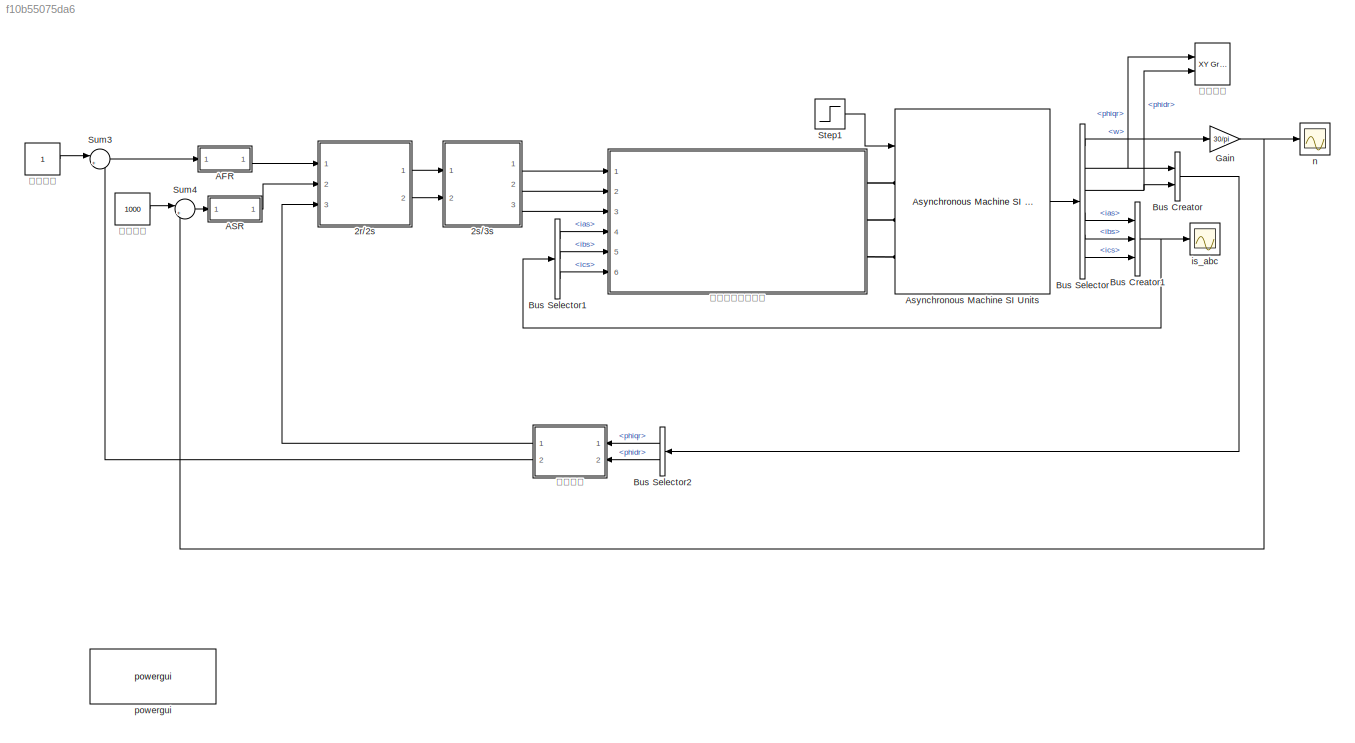
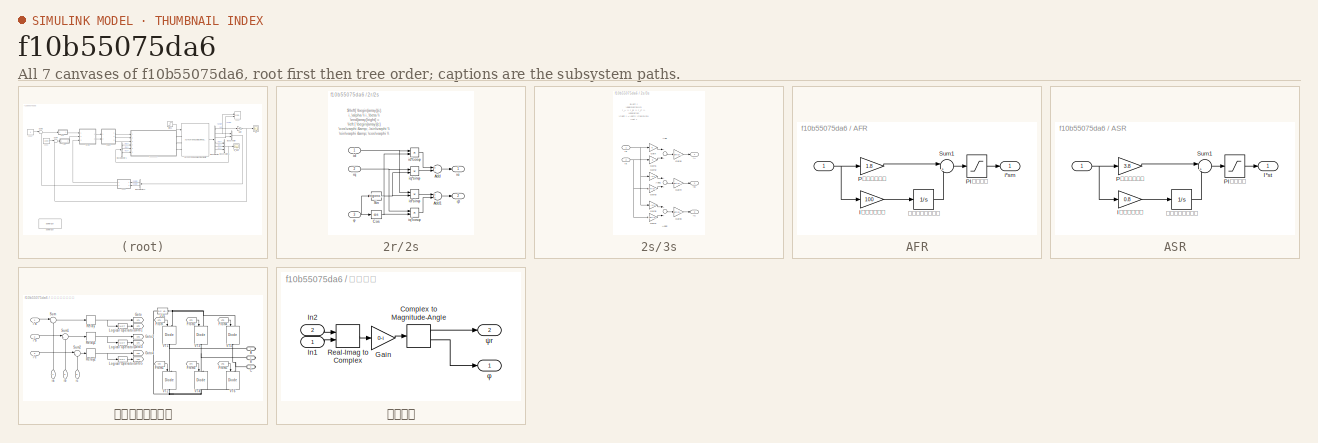
[diagram: thumbnail index - all 7 canvases of the model, root first then tree order]
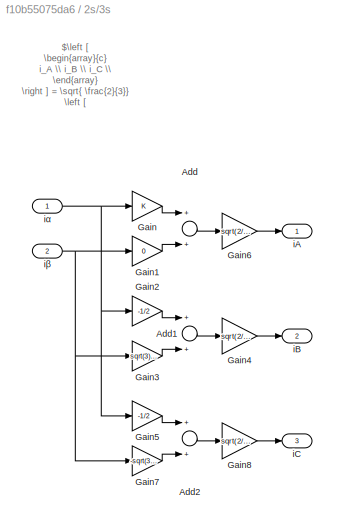
MODEL slx_f10b55075da6
KIND model
CONFIG AbsTol = auto
CONFIG EnableMultiTasking = off
CONFIG FixedStep = auto
CONFIG MaxStep = 1e-4
CONFIG MinStep = auto
CONFIG RelTol = 1e-3
CONFIG SampleTimeConstraint = Unconstrained
CONFIG Solver = ode23tb
CONFIG SolverName = ode23tb
CONFIG StartTime = 0.0
CONFIG StopTime = 1
BLOCK [SubSystem] 2r//2s
  Ports = [3, 2]
  RequestExecContextInheritance = off
BLOCK [Sum] 2r//2s/Add
  InputSameDT = off
  Inputs = +-
  OutDataTypeStr = Inherit: Inherit via internal rule
  Ports = [2, 1]
  SaturateOnIntegerOverflow = off
BLOCK [Sum] 2r//2s/Add1
  InputSameDT = off
  OutDataTypeStr = Inherit: Inherit via internal rule
  Ports = [2, 1]
  SaturateOnIntegerOverflow = off
BLOCK [Trigonometry] 2r//2s/Cos
  Operator = cos
  Ports = [1, 1]
BLOCK [Trigonometry] 2r//2s/Sin
  Ports = [1, 1]
BLOCK [Inport] 2r//2s/id
  IconDisplay = Port number
BLOCK [Product] 2r//2s/id*cosφ
  InputSameDT = off
  OutDataTypeStr = Inherit: Inherit via internal rule
  Ports = [2, 1]
  RndMeth = Floor
  SaturateOnIntegerOverflow = off
BLOCK [Product] 2r//2s/id*sinφ
  InputSameDT = off
  OutDataTypeStr = Inherit: Inherit via internal rule
  Ports = [2, 1]
  RndMeth = Floor
  SaturateOnIntegerOverflow = off
BLOCK [Inport] 2r//2s/iq
  IconDisplay = Port number
  Port = 2
BLOCK [Product] 2r//2s/iq*cosφ
  InputSameDT = off
  OutDataTypeStr = Inherit: Inherit via internal rule
  Ports = [2, 1]
  RndMeth = Floor
  SaturateOnIntegerOverflow = off
BLOCK [Product] 2r//2s/iq*sinφ
  InputSameDT = off
  OutDataTypeStr = Inherit: Inherit via internal rule
  Ports = [2, 1]
  RndMeth = Floor
  SaturateOnIntegerOverflow = off
BLOCK [Outport] 2r//2s/iα
  IconDisplay = Port number
BLOCK [Outport] 2r//2s/iβ
  IconDisplay = Port number
  Port = 2
BLOCK [Inport] 2r//2s/φ
  IconDisplay = Port number
  Port = 3
BLOCK [SubSystem] 2s//3s
  Ports = [2, 3]
  RequestExecContextInheritance = off
BLOCK [Sum] 2s//3s/Add
  InputSameDT = off
  Inputs = 2
  OutDataTypeStr = Inherit: Inherit via internal rule
  Ports = [2, 1]
  SaturateOnIntegerOverflow = off
BLOCK [Sum] 2s//3s/Add1
  InputSameDT = off
  Inputs = 2
  OutDataTypeStr = Inherit: Inherit via internal rule
  Ports = [2, 1]
  SaturateOnIntegerOverflow = off
BLOCK [Sum] 2s//3s/Add2
  InputSameDT = off
  Inputs = 2
  OutDataTypeStr = Inherit: Inherit via internal rule
  Ports = [2, 1]
  SaturateOnIntegerOverflow = off
BLOCK [Gain] 2s//3s/Gain
  OutDataTypeStr = Inherit: Inherit via internal rule
  ParamDataTypeStr = Inherit: Inherit via internal rule
  SaturateOnIntegerOverflow = off
BLOCK [Gain] 2s//3s/Gain1
  Gain = 0
  OutDataTypeStr = Inherit: Inherit via internal rule
  ParamDataTypeStr = Inherit: Inherit via internal rule
  SaturateOnIntegerOverflow = off
BLOCK [Gain] 2s//3s/Gain2
  Gain = -1/2
  OutDataTypeStr = Inherit: Inherit via internal rule
  ParamDataTypeStr = Inherit: Inherit via internal rule
  SaturateOnIntegerOverflow = off
BLOCK [Gain] 2s//3s/Gain3
  Gain = sqrt(3)/2
  OutDataTypeStr = Inherit: Inherit via internal rule
  ParamDataTypeStr = Inherit: Inherit via internal rule
  SaturateOnIntegerOverflow = off
BLOCK [Gain] 2s//3s/Gain4
  Gain = sqrt(2/3)
  OutDataTypeStr = Inherit: Inherit via internal rule
  ParamDataTypeStr = Inherit: Inherit via internal rule
  SaturateOnIntegerOverflow = off
BLOCK [Gain] 2s//3s/Gain5
  Gain = -1/2
  OutDataTypeStr = Inherit: Inherit via internal rule
  ParamDataTypeStr = Inherit: Inherit via internal rule
  SaturateOnIntegerOverflow = off
BLOCK [Gain] 2s//3s/Gain6
  Gain = sqrt(2/3)
  OutDataTypeStr = Inherit: Inherit via internal rule
  ParamDataTypeStr = Inherit: Inherit via internal rule
  SaturateOnIntegerOverflow = off
BLOCK [Gain] 2s//3s/Gain7
  Gain = -sqrt(3)/2
  OutDataTypeStr = Inherit: Inherit via internal rule
  ParamDataTypeStr = Inherit: Inherit via internal rule
  SaturateOnIntegerOverflow = off
BLOCK [Gain] 2s//3s/Gain8
  Gain = sqrt(2/3)
  OutDataTypeStr = Inherit: Inherit via internal rule
  ParamDataTypeStr = Inherit: Inherit via internal rule
  SaturateOnIntegerOverflow = off
BLOCK [Outport] 2s//3s/iA
  IconDisplay = Port number
BLOCK [Outport] 2s//3s/iB
  IconDisplay = Port number
  Port = 2
BLOCK [Outport] 2s//3s/iC
  IconDisplay = Port number
  Port = 3
BLOCK [Inport] 2s//3s/iα
  IconDisplay = Port number
BLOCK [Inport] 2s//3s/iβ
  IconDisplay = Port number
  Port = 2
BLOCK [SubSystem] AFR
  Ports = [1, 1]
  RequestExecContextInheritance = off
BLOCK [Inport] AFR/ 
  IconDisplay = Port number
BLOCK [Gain] AFR/I积分放大倍数
  Gain = 100
  OutDataTypeStr = Inherit: Inherit via internal rule
  ParamDataTypeStr = Inherit: Inherit via internal rule
  SaturateOnIntegerOverflow = off
BLOCK [Saturate] AFR/PI输出限幅
  InputPortMap = u0
  LowerLimit = -13
  Ports = [1, 1]
  UpperLimit = 13
BLOCK [Gain] AFR/P比例放大倍数
  Gain = 1.8
  OutDataTypeStr = Inherit: Inherit via internal rule
  ParamDataTypeStr = Inherit: Inherit via internal rule
  SaturateOnIntegerOverflow = off
BLOCK [Sum] AFR/Sum1
  IconShape = round
  InputSameDT = off
  Inputs = |++
  OutDataTypeStr = Inherit: Inherit via internal rule
  Ports = [2, 1]
  SaturateOnIntegerOverflow = off
BLOCK [Outport] AFR/i*sm
  IconDisplay = Port number
  VectorParamsAs1DForOutWhenUnconnected = off
BLOCK [Integrator] AFR/带限幅的连续积分
  LimitOutput = on
  LowerSaturationLimit = -15
  Ports = [1, 1]
  UpperSaturationLimit = 15
BLOCK [SubSystem] ASR
  Ports = [1, 1]
  RequestExecContextInheritance = off
BLOCK [Inport] ASR/  
  IconDisplay = Port number
BLOCK [Outport] ASR/I*st
  IconDisplay = Port number
  VectorParamsAs1DForOutWhenUnconnected = off
BLOCK [Gain] ASR/I积分放大倍数
  Gain = 0.8
  OutDataTypeStr = Inherit: Inherit via internal rule
  ParamDataTypeStr = Inherit: Inherit via internal rule
  SaturateOnIntegerOverflow = off
BLOCK [Saturate] ASR/PI输出限幅
  InputPortMap = u0
  LowerLimit = -75
  Ports = [1, 1]
  UpperLimit = 75
BLOCK [Gain] ASR/P比例放大倍数
  Gain = 3.8
  OutDataTypeStr = Inherit: Inherit via internal rule
  ParamDataTypeStr = Inherit: Inherit via internal rule
  SaturateOnIntegerOverflow = off
BLOCK [Sum] ASR/Sum1
  IconShape = round
  InputSameDT = off
  Inputs = |++
  OutDataTypeStr = Inherit: Inherit via internal rule
  Ports = [2, 1]
  SaturateOnIntegerOverflow = off
BLOCK [Integrator] ASR/带限幅的连续积分
  LimitOutput = on
  LowerSaturationLimit = -80
  Ports = [1, 1]
  UpperSaturationLimit = 80
BLOCK [Reference] Asynchronous Machine SI Units  REF=powerlib/Machines/Asynchronous Machine
SI Units
  Ports = [1, 1, 0, 0, 0, 3]
  SourceBlock = powerlib/Machines/Asynchronous Machine\nSI Units
  SourceProductBaseCode = PS
  SourceProductName = Simscape Electrical
  SourceType = Asynchronous Machine
BLOCK [BusCreator] Bus Creator
  DisplayOption = bar
  InheritFromInputs = on
  Inputs = 2
  Ports = [2, 1]
BLOCK [BusCreator] Bus Creator1
  DisplayOption = bar
  InheritFromInputs = on
  Inputs = 3
  Ports = [3, 1]
BLOCK [BusSelector] Bus Selector
  OutputAsBus = off
  OutputSignals = w,phiqr,phidr,ias,ibs,ics
  Ports = [1, 6]
BLOCK [BusSelector] Bus Selector1
  OutputAsBus = off
  OutputSignals = ias,ibs,ics
  Ports = [1, 3]
BLOCK [BusSelector] Bus Selector2
  OutputAsBus = off
  OutputSignals = phiqr,phidr
  Ports = [1, 2]
BLOCK [Gain] Gain
  Gain = 30/pi
  OutDataTypeStr = Inherit: Inherit via internal rule
  ParamDataTypeStr = Inherit: Inherit via internal rule
  SaturateOnIntegerOverflow = off
BLOCK [Step] Step1
  After = 55
  SampleTime = 0
  Time = 0.6
BLOCK [Sum] Sum3
  IconShape = round
  InputSameDT = off
  Inputs = |+-
  OutDataTypeStr = Inherit: Inherit via internal rule
  Ports = [2, 1]
  SaturateOnIntegerOverflow = off
BLOCK [Sum] Sum4
  IconShape = round
  InputSameDT = off
  Inputs = |+-
  OutDataTypeStr = Inherit: Inherit via internal rule
  Ports = [2, 1]
  SaturateOnIntegerOverflow = off
BLOCK [Scope] is_abc
  Floating = off
  NumInputPorts = 1
  Ports = [1]
  ScopeSpecificationString = Simulink.scopes.TimeScopeBlockCfg('CurrentConfiguration', extmgr.ConfigurationSet(extmgr.Configuration('Core','General UI',true),extmgr.Configuration('Core','Source UI',true),extmgr.Configuration('Sources','WiredSimulink',true,'DataLoggingVariableName','ScopeData1'),extmgr.Configuration('Visuals','Time Domain',true,'SerializedDisplays',{struct('MinYLimReal','-77.32754','MaxYLimReal','77.3987','YLa...<+1533ch>
BLOCK [Scope] n
  Floating = off
  NumInputPorts = 1
  Ports = [1]
  ScopeSpecificationString = Simulink.scopes.TimeScopeBlockCfg('CurrentConfiguration', extmgr.ConfigurationSet(extmgr.Configuration('Core','General UI',true),extmgr.Configuration('Core','Source UI',true),extmgr.Configuration('Sources','WiredSimulink',true),extmgr.Configuration('Visuals','Time Domain',true,'SerializedDisplays',{struct('MinYLimReal','-127.5929','MaxYLimReal','1148.33607','YLabelReal','','MinYLimMag',' 0.00000',...<+1445ch>
BLOCK [Reference] powergui  REF=powerlib/powergui
  Ports = []
  SourceBlock = powerlib/powergui
  SourceProductBaseCode = PS
  SourceProductName = Simscape Electrical
  SourceType = PSB option menu block
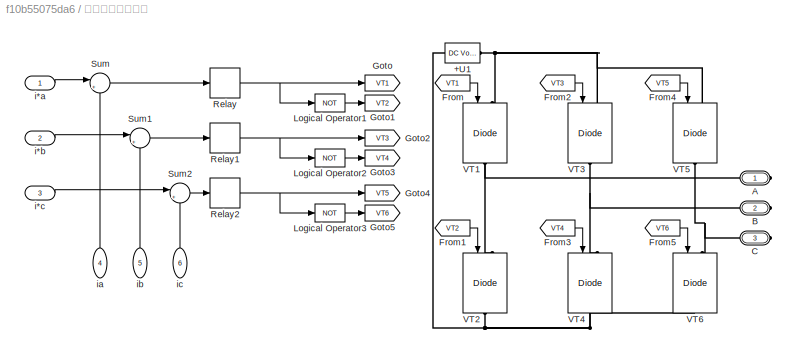
BLOCK [SubSystem] 电流滞环跟踪控制
  Ports = [6, 0, 0, 0, 0, 0, 3]
  RequestExecContextInheritance = off
BLOCK [Reference] 电流滞环跟踪控制/+U1  REF=powerlib/Electrical
Sources/DC Voltage Source
  Ports = [0, 0, 0, 0, 0, 1, 1]
  SourceBlock = powerlib/Electrical\nSources/DC Voltage Source
  SourceProductBaseCode = PS
  SourceProductName = Simscape Electrical
  SourceType = DC Voltage Source
BLOCK [PMIOPort] 电流滞环跟踪控制/A
  Side = Right
BLOCK [PMIOPort] 电流滞环跟踪控制/B
  Port = 2
  Side = Right
BLOCK [PMIOPort] 电流滞环跟踪控制/C
  Port = 3
  Side = Right
BLOCK [From] 电流滞环跟踪控制/From
  GotoTag = VT1
BLOCK [From] 电流滞环跟踪控制/From1
  GotoTag = VT2
BLOCK [From] 电流滞环跟踪控制/From2
  GotoTag = VT3
BLOCK [From] 电流滞环跟踪控制/From3
  GotoTag = VT4
BLOCK [From] 电流滞环跟踪控制/From4
  GotoTag = VT5
BLOCK [From] 电流滞环跟踪控制/From5
  GotoTag = VT6
BLOCK [Goto] 电流滞环跟踪控制/Goto
  GotoTag = VT1
BLOCK [Goto] 电流滞环跟踪控制/Goto1
  GotoTag = VT2
BLOCK [Goto] 电流滞环跟踪控制/Goto2
  GotoTag = VT3
BLOCK [Goto] 电流滞环跟踪控制/Goto3
  GotoTag = VT4
BLOCK [Goto] 电流滞环跟踪控制/Goto4
  GotoTag = VT5
BLOCK [Goto] 电流滞环跟踪控制/Goto5
  GotoTag = VT6
BLOCK [Logic] 电流滞环跟踪控制/Logical Operator1
  AllPortsSameDT = off
  Operator = NOT
  OutDataTypeStr = boolean
  Ports = [1, 1]
BLOCK [Logic] 电流滞环跟踪控制/Logical Operator2
  AllPortsSameDT = off
  Operator = NOT
  OutDataTypeStr = boolean
  Ports = [1, 1]
BLOCK [Logic] 电流滞环跟踪控制/Logical Operator3
  AllPortsSameDT = off
  Operator = NOT
  OutDataTypeStr = boolean
  Ports = [1, 1]
BLOCK [Relay] 电流滞环跟踪控制/Relay
  OffSwitchValue = -0.2
  OnSwitchValue = 0.2
BLOCK [Relay] 电流滞环跟踪控制/Relay1
  OffSwitchValue = -0.2
  OnSwitchValue = 0.2
BLOCK [Relay] 电流滞环跟踪控制/Relay2
  OffSwitchValue = -0.2
  OnSwitchValue = 0.2
BLOCK [Sum] 电流滞环跟踪控制/Sum
  IconShape = round
  InputSameDT = off
  Inputs = |+-
  OutDataTypeStr = Inherit: Inherit via internal rule
  Ports = [2, 1]
  SaturateOnIntegerOverflow = off
BLOCK [Sum] 电流滞环跟踪控制/Sum1
  IconShape = round
  InputSameDT = off
  Inputs = |+-
  OutDataTypeStr = Inherit: Inherit via internal rule
  Ports = [2, 1]
  SaturateOnIntegerOverflow = off
BLOCK [Sum] 电流滞环跟踪控制/Sum2
  IconShape = round
  InputSameDT = off
  Inputs = |+-
  OutDataTypeStr = Inherit: Inherit via internal rule
  Ports = [2, 1]
  SaturateOnIntegerOverflow = off
BLOCK [Reference] 电流滞环跟踪控制/VT1  REF=powerlib/Power
Electronics/IGBT//Diode
  Ports = [1, 0, 0, 0, 0, 1, 1]
  SourceBlock = powerlib/Power\nElectronics/IGBT//Diode
  SourceProductBaseCode = PS
  SourceProductName = Simscape Electrical
  SourceType = IGBT/Diode
BLOCK [Reference] 电流滞环跟踪控制/VT2  REF=powerlib/Power
Electronics/IGBT//Diode
  Ports = [1, 0, 0, 0, 0, 1, 1]
  SourceBlock = powerlib/Power\nElectronics/IGBT//Diode
  SourceProductBaseCode = PS
  SourceProductName = Simscape Electrical
  SourceType = IGBT/Diode
BLOCK [Reference] 电流滞环跟踪控制/VT3  REF=powerlib/Power
Electronics/IGBT//Diode
  Ports = [1, 0, 0, 0, 0, 1, 1]
  SourceBlock = powerlib/Power\nElectronics/IGBT//Diode
  SourceProductBaseCode = PS
  SourceProductName = Simscape Electrical
  SourceType = IGBT/Diode
BLOCK [Reference] 电流滞环跟踪控制/VT4  REF=powerlib/Power
Electronics/IGBT//Diode
  Ports = [1, 0, 0, 0, 0, 1, 1]
  SourceBlock = powerlib/Power\nElectronics/IGBT//Diode
  SourceProductBaseCode = PS
  SourceProductName = Simscape Electrical
  SourceType = IGBT/Diode
BLOCK [Reference] 电流滞环跟踪控制/VT5  REF=powerlib/Power
Electronics/IGBT//Diode
  Ports = [1, 0, 0, 0, 0, 1, 1]
  SourceBlock = powerlib/Power\nElectronics/IGBT//Diode
  SourceProductBaseCode = PS
  SourceProductName = Simscape Electrical
  SourceType = IGBT/Diode
BLOCK [Reference] 电流滞环跟踪控制/VT6  REF=powerlib/Power
Electronics/IGBT//Diode
  Ports = [1, 0, 0, 0, 0, 1, 1]
  SourceBlock = powerlib/Power\nElectronics/IGBT//Diode
  SourceProductBaseCode = PS
  SourceProductName = Simscape Electrical
  SourceType = IGBT/Diode
BLOCK [Inport] 电流滞环跟踪控制/i*a
  IconDisplay = Port number
BLOCK [Inport] 电流滞环跟踪控制/i*b
  IconDisplay = Port number
  Port = 2
BLOCK [Inport] 电流滞环跟踪控制/i*c
  IconDisplay = Port number
  Port = 3
BLOCK [Inport] 电流滞环跟踪控制/ia
  IconDisplay = Port number
  Port = 4
BLOCK [Inport] 电流滞环跟踪控制/ib
  IconDisplay = Port number
  Port = 5
BLOCK [Inport] 电流滞环跟踪控制/ic
  IconDisplay = Port number
  Port = 6
BLOCK [SubSystem] 磁链计算
  Ports = [2, 2]
  RequestExecContextInheritance = off
BLOCK [ComplexToMagnitudeAngle] 磁链计算/Complex to Magnitude-Angle
  Ports = [1, 2]
BLOCK [Gain] 磁链计算/Gain
  Gain = 0-i
  OutDataTypeStr = Inherit: Inherit via internal rule
  ParamDataTypeStr = Inherit: Inherit via internal rule
  SaturateOnIntegerOverflow = off
BLOCK [Inport] 磁链计算/In1
  IconDisplay = Port number
BLOCK [Inport] 磁链计算/In2
  IconDisplay = Port number
  Port = 2
BLOCK [RealImagToComplex] 磁链计算/Real-Imag to Complex
  Ports = [2, 1]
BLOCK [Outport] 磁链计算/φ
  IconDisplay = Port number
BLOCK [Outport] 磁链计算/ψr
  IconDisplay = Port number
  Port = 2
BLOCK [Constant] 给定磁链
BLOCK [Constant] 给定转速
  Value = 1000
BLOCK [Reference] 转子磁链  REF=simulink/Sinks/XY Graph
  Ports = [2]
  SourceBlock = simulink/Sinks/XY Graph
  SourceProductBaseCode = SL
  SourceProductName = Simulink
  SourceType = XY scope.
ANNOTATION 2r//2s: $\left[ \begin{array}{c} i_\alpha \\ i_\beta \\ \end{array}\right] = \left [ \begin{array}{c} \cos\varphi & -\sin\varphi \\ \sin\varphi & \cos\varphi \\ \end{array}\right] \left[ \begin{array}{c} i_d \\ i_q \\ \end{array} \right]$
ANNOTATION 2s//3s: $\left [ \begin{array}{c} i_A \\ i_B \\ i_C \\ \end{array} \right ] = \sqrt{ \frac{2}{3}} \left [ \begin{array}{c} 1 & 0 \\ -\frac{1}{2} & \frac{\sqrt{3}}{2} \\ -\frac{1}{2} & -\frac{\sqrt{3}}{2}\\ \end{array} \right] \left [ \begin{array}{c} i_\alpha \\ i_\beta \\ \end{array} \right ]$
LINE 2r//2s/Add1:1 -> 2r//2s/iβ:1
LINE 2r//2s/Add:1 -> 2r//2s/iα:1
NET 2r//2s/Cos:1 -> 2r//2s/id*cosφ:2, 2r//2s/iq*cosφ:2
NET 2r//2s/Sin:1 -> 2r//2s/id*sinφ:2, 2r//2s/iq*sinφ:2
LINE 2r//2s/id*cosφ:1 -> 2r//2s/Add:1
LINE 2r//2s/id*sinφ:1 -> 2r//2s/Add1:1
NET 2r//2s/id:1 -> 2r//2s/id*cosφ:1, 2r//2s/id*sinφ:1
LINE 2r//2s/iq*cosφ:1 -> 2r//2s/Add1:2
LINE 2r//2s/iq*sinφ:1 -> 2r//2s/Add:2
NET 2r//2s/iq:1 -> 2r//2s/iq*cosφ:1, 2r//2s/iq*sinφ:1
NET 2r//2s/φ:1 -> 2r//2s/Cos:1, 2r//2s/Sin:1
LINE 2r//2s:1 -> 2s//3s:1
LINE 2r//2s:2 -> 2s//3s:2
LINE 2s//3s/Add1:1 -> 2s//3s/Gain4:1
LINE 2s//3s/Add2:1 -> 2s//3s/Gain8:1
LINE 2s//3s/Add:1 -> 2s//3s/Gain6:1
LINE 2s//3s/Gain1:1 -> 2s//3s/Add:2
LINE 2s//3s/Gain2:1 -> 2s//3s/Add1:1
LINE 2s//3s/Gain3:1 -> 2s//3s/Add1:2
LINE 2s//3s/Gain4:1 -> 2s//3s/iB:1
LINE 2s//3s/Gain5:1 -> 2s//3s/Add2:1
LINE 2s//3s/Gain6:1 -> 2s//3s/iA:1
LINE 2s//3s/Gain7:1 -> 2s//3s/Add2:2
LINE 2s//3s/Gain8:1 -> 2s//3s/iC:1
LINE 2s//3s/Gain:1 -> 2s//3s/Add:1
NET 2s//3s/iα:1 -> 2s//3s/Gain2:1, 2s//3s/Gain5:1, 2s//3s/Gain:1
NET 2s//3s/iβ:1 -> 2s//3s/Gain1:1, 2s//3s/Gain3:1, 2s//3s/Gain7:1
LINE 2s//3s:1 -> 电流滞环跟踪控制:1
LINE 2s//3s:2 -> 电流滞环跟踪控制:2
LINE 2s//3s:3 -> 电流滞环跟踪控制:3
NET AFR/ :1 -> AFR/I积分放大倍数:1, AFR/P比例放大倍数:1
LINE AFR/I积分放大倍数:1 -> AFR/带限幅的连续积分:1
LINE AFR/PI输出限幅:1 -> AFR/i*sm:1
LINE AFR/P比例放大倍数:1 -> AFR/Sum1:1
LINE AFR/Sum1:1 -> AFR/PI输出限幅:1
LINE AFR/带限幅的连续积分:1 -> AFR/Sum1:2
LINE AFR:1 -> 2r//2s:1
NET ASR/  :1 -> ASR/I积分放大倍数:1, ASR/P比例放大倍数:1
LINE ASR/I积分放大倍数:1 -> ASR/带限幅的连续积分:1
LINE ASR/PI输出限幅:1 -> ASR/I*st:1
LINE ASR/P比例放大倍数:1 -> ASR/Sum1:1
LINE ASR/Sum1:1 -> ASR/PI输出限幅:1
LINE ASR/带限幅的连续积分:1 -> ASR/Sum1:2
LINE ASR:1 -> 2r//2s:2
LINE Asynchronous Machine SI Units:1 -> Bus Selector:1
NET Bus Creator1:1 -> Bus Selector1:1, is_abc:1
LINE Bus Creator:1 -> Bus Selector2:1
LINE Bus Selector1:1 -> 电流滞环跟踪控制:4
LINE Bus Selector1:2 -> 电流滞环跟踪控制:5
LINE Bus Selector1:3 -> 电流滞环跟踪控制:6
LINE Bus Selector2:1 -> 磁链计算:1
LINE Bus Selector2:2 -> 磁链计算:2
LINE Bus Selector:1 -> Gain:1
NET Bus Selector:2 -> Bus Creator:1, 转子磁链:1
NET Bus Selector:3 -> Bus Creator:2, 转子磁链:2
LINE Bus Selector:4 -> Bus Creator1:1
LINE Bus Selector:5 -> Bus Creator1:2
LINE Bus Selector:6 -> Bus Creator1:3
NET Gain:1 -> Sum4:2, n:1
LINE Step1:1 -> Asynchronous Machine SI Units:1
LINE Sum3:1 -> AFR:1
LINE Sum4:1 -> ASR:1
LINE 电流滞环跟踪控制/From1:1 -> 电流滞环跟踪控制/VT2:1
LINE 电流滞环跟踪控制/From2:1 -> 电流滞环跟踪控制/VT3:1
LINE 电流滞环跟踪控制/From3:1 -> 电流滞环跟踪控制/VT4:1
LINE 电流滞环跟踪控制/From4:1 -> 电流滞环跟踪控制/VT5:1
LINE 电流滞环跟踪控制/From5:1 -> 电流滞环跟踪控制/VT6:1
LINE 电流滞环跟踪控制/From:1 -> 电流滞环跟踪控制/VT1:1
LINE 电流滞环跟踪控制/Logical Operator1:1 -> 电流滞环跟踪控制/Goto1:1
LINE 电流滞环跟踪控制/Logical Operator2:1 -> 电流滞环跟踪控制/Goto3:1
LINE 电流滞环跟踪控制/Logical Operator3:1 -> 电流滞环跟踪控制/Goto5:1
NET 电流滞环跟踪控制/Relay1:1 -> 电流滞环跟踪控制/Goto2:1, 电流滞环跟踪控制/Logical Operator2:1
NET 电流滞环跟踪控制/Relay2:1 -> 电流滞环跟踪控制/Goto4:1, 电流滞环跟踪控制/Logical Operator3:1
NET 电流滞环跟踪控制/Relay:1 -> 电流滞环跟踪控制/Goto:1, 电流滞环跟踪控制/Logical Operator1:1
LINE 电流滞环跟踪控制/Sum1:1 -> 电流滞环跟踪控制/Relay1:1
LINE 电流滞环跟踪控制/Sum2:1 -> 电流滞环跟踪控制/Relay2:1
LINE 电流滞环跟踪控制/Sum:1 -> 电流滞环跟踪控制/Relay:1
LINE 电流滞环跟踪控制/i*a:1 -> 电流滞环跟踪控制/Sum:1
LINE 电流滞环跟踪控制/i*b:1 -> 电流滞环跟踪控制/Sum1:1
LINE 电流滞环跟踪控制/i*c:1 -> 电流滞环跟踪控制/Sum2:1
LINE 电流滞环跟踪控制/ia:1 -> 电流滞环跟踪控制/Sum:2
LINE 电流滞环跟踪控制/ib:1 -> 电流滞环跟踪控制/Sum1:2
LINE 电流滞环跟踪控制/ic:1 -> 电流滞环跟踪控制/Sum2:2
LINE 磁链计算/Complex to Magnitude-Angle:1 -> 磁链计算/ψr:1
LINE 磁链计算/Complex to Magnitude-Angle:2 -> 磁链计算/φ:1
LINE 磁链计算/Gain:1 -> 磁链计算/Complex to Magnitude-Angle:1
LINE 磁链计算/In1:1 -> 磁链计算/Real-Imag to Complex:2
LINE 磁链计算/In2:1 -> 磁链计算/Real-Imag to Complex:1
LINE 磁链计算/Real-Imag to Complex:1 -> 磁链计算/Gain:1
LINE 磁链计算:1 -> 2r//2s:3
LINE 磁链计算:2 -> Sum3:2
LINE 给定磁链:1 -> Sum3:1
LINE 给定转速:1 -> Sum4:1
PLINE Asynchronous Machine SI Units:LConn1 -- 电流滞环跟踪控制:RConn1
PLINE Asynchronous Machine SI Units:LConn2 -- 电流滞环跟踪控制:RConn2
PLINE Asynchronous Machine SI Units:LConn3 -- 电流滞环跟踪控制:RConn3
PNET net1: 电流滞环跟踪控制/+U1:LConn1 -- 电流滞环跟踪控制/VT2:RConn1 -- 电流滞环跟踪控制/VT4:RConn1 -- 电流滞环跟踪控制/VT6:RConn1
PNET net2: 电流滞环跟踪控制/+U1:RConn1 -- 电流滞环跟踪控制/VT1:LConn1 -- 电流滞环跟踪控制/VT3:LConn1 -- 电流滞环跟踪控制/VT5:LConn1
PNET net3: 电流滞环跟踪控制/A:RConn1 -- 电流滞环跟踪控制/VT1:RConn1 -- 电流滞环跟踪控制/VT2:LConn1
PNET net4: 电流滞环跟踪控制/B:RConn1 -- 电流滞环跟踪控制/VT3:RConn1 -- 电流滞环跟踪控制/VT4:LConn1
PNET net5: 电流滞环跟踪控制/C:RConn1 -- 电流滞环跟踪控制/VT5:RConn1 -- 电流滞环跟踪控制/VT6:LConn1
note: NET lines group one-source signal fan-out (src -> all destinations, sorted); 1:1 wires keep LINE; PNET lines group multi-terminal physical nets as a canonical sorted terminal list (undirected conserving connections); 2-terminal nets keep the pairwise PLINE form
